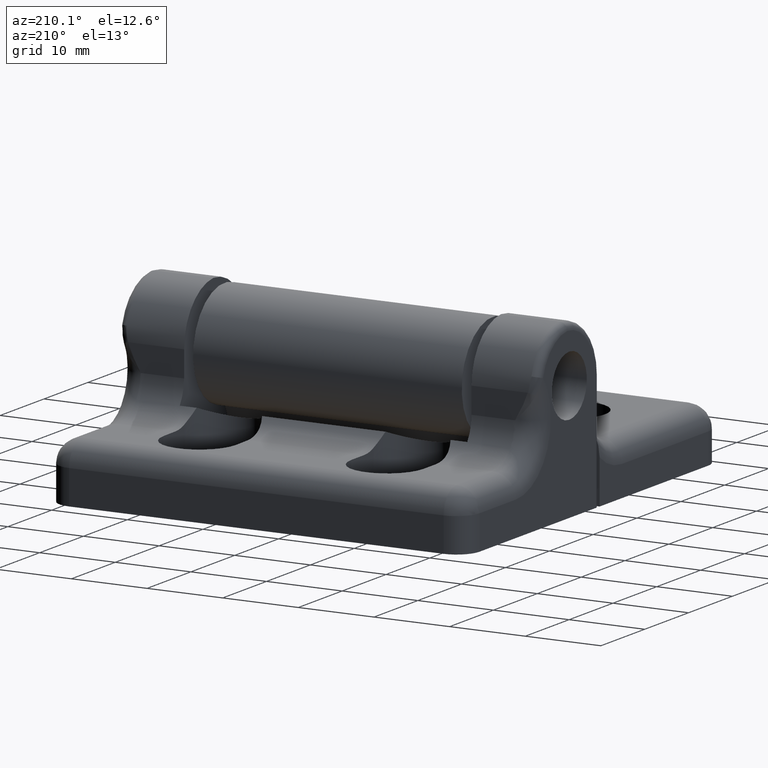
[diagram: clean part render]
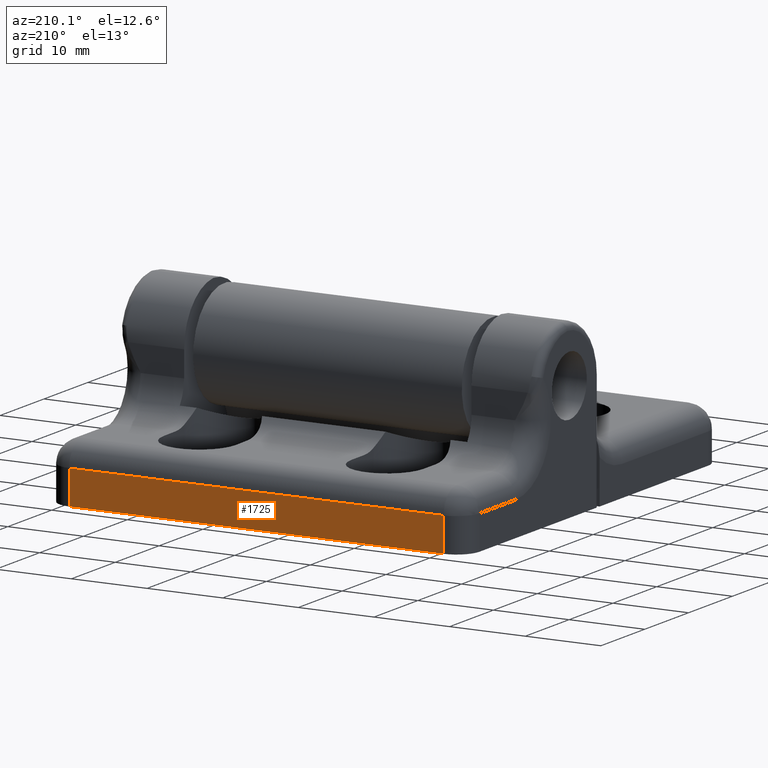
[diagram: same view with one face highlighted and labeled with its STEP entity id]
A machine part, auxiliary view. The second image highlights one B-rep face of the part: STEP entity #1725.
In plain terms, the highlighted planar face has unit normal (0, -1, 0).
Its self-contained STEP definition (entity closure, byte-faithful):
#58=PLANE('',#1874);
#152=FACE_OUTER_BOUND('',#259,.T.);
#259=EDGE_LOOP('',(#1295,#1296,#1297,#1298));
#400=LINE('',#2795,#542);
#410=LINE('',#2833,#552);
#411=LINE('',#2834,#553);
#412=LINE('',#2835,#554);
#542=VECTOR('',#2180,49.5);
#552=VECTOR('',#2214,49.4999999982885);
#553=VECTOR('',#2215,4.49999999917233);
#554=VECTOR('',#2216,4.49999999911611);
#799=VERTEX_POINT('',#2792);
#800=VERTEX_POINT('',#2794);
#815=VERTEX_POINT('',#2831);
#816=VERTEX_POINT('',#2832);
#987=EDGE_CURVE('',#800,#799,#400,.T.);
#1006=EDGE_CURVE('',#815,#816,#410,.T.);
#1007=EDGE_CURVE('',#816,#800,#411,.T.);
#1008=EDGE_CURVE('',#799,#815,#412,.T.);
#1295=ORIENTED_EDGE('',*,*,#1006,.T.);
#1296=ORIENTED_EDGE('',*,*,#1007,.T.);
#1297=ORIENTED_EDGE('',*,*,#987,.T.);
#1298=ORIENTED_EDGE('',*,*,#1008,.T.);
#1725=ADVANCED_FACE('',(#152),#58,.F.);
#1874=AXIS2_PLACEMENT_3D('',#2830,#2212,#2213);
#2180=DIRECTION('',(-1.,0.,0.));
#2212=DIRECTION('center_axis',(0.,-1.,0.));
#2213=DIRECTION('ref_axis',(0.,0.,-1.));
#2214=DIRECTION('',(1.,0.,0.));
#2215=DIRECTION('',(0.,0.,-1.));
#2216=DIRECTION('',(0.,0.,1.));
#2792=CARTESIAN_POINT('',(-14.75,45.4677756572818,0.497772930929919));
#2794=CARTESIAN_POINT('',(34.75,45.4677756572818,0.497772930929919));
#2795=CARTESIAN_POINT('',(34.75,45.4677756572818,0.497772930929919));
#2830=CARTESIAN_POINT('Origin',(-17.225,45.4677756572818,0.272772930929917));
#2831=CARTESIAN_POINT('',(-14.7499999991161,45.4677756572818,4.99777293004603));
#2832=CARTESIAN_POINT('',(34.7499999991723,45.4677756572818,4.99777293010225));
#2833=CARTESIAN_POINT('',(-14.75,45.4677756572818,4.99777293092992));
#2834=CARTESIAN_POINT('',(34.75,45.4677756572818,4.99777293092992));
#2835=CARTESIAN_POINT('',(-14.75,45.4677756572818,0.497772930929919));